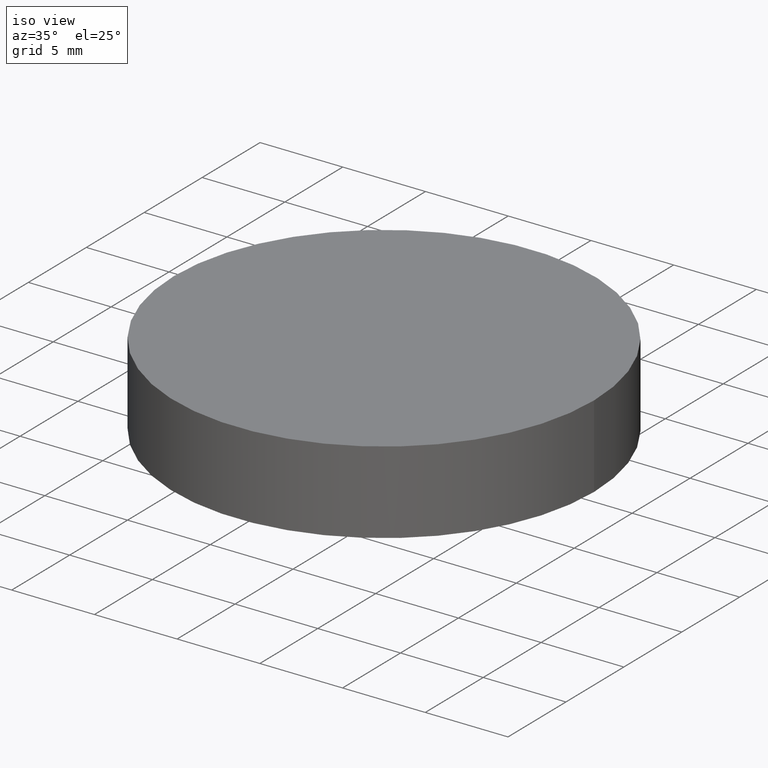
[diagram: clean part render]
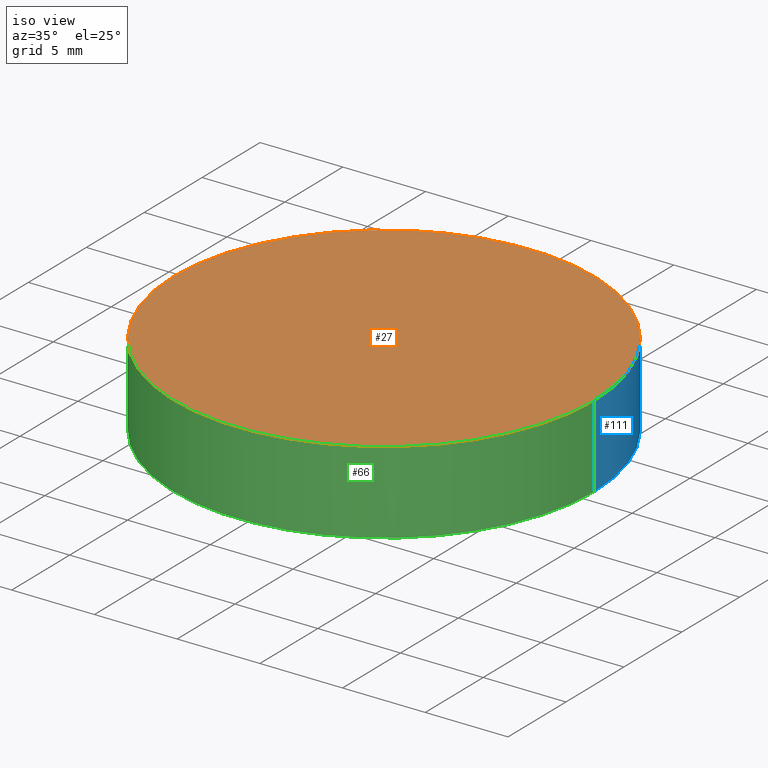
[diagram: same view with three faces highlighted in distinct colors, each labeled with its STEP entity id]
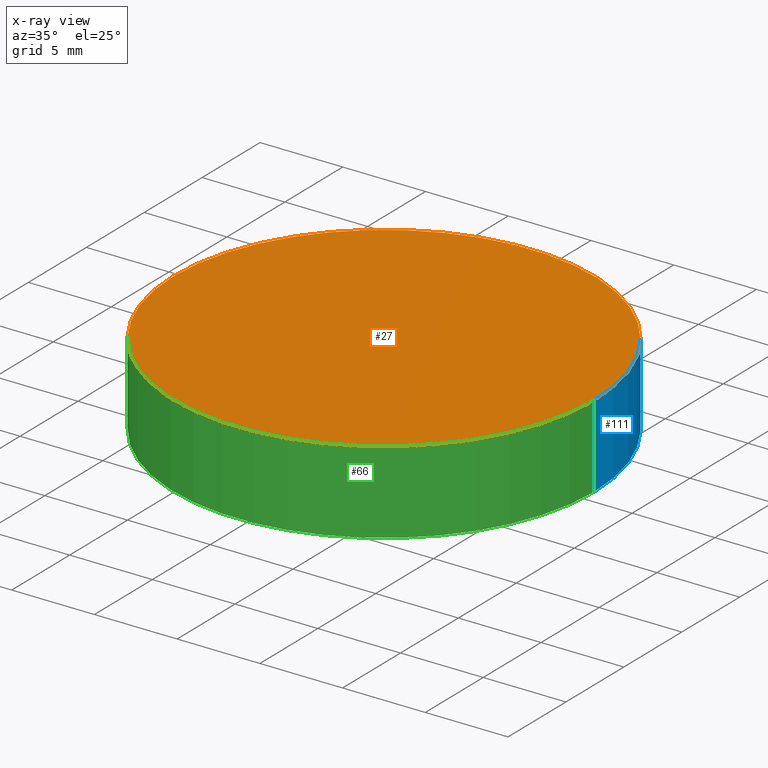
[diagram: x-ray of the same camera — body ghosted, the three highlighted faces saturated]
A machine part, iso view with three faces highlighted in distinct colors.
The next image is the same camera in x-ray (body ghosted, the three faces saturated) — at least one of them is partly hidden behind the body in this view.
Their STEP definitions:

[orange] entity #27 — the highlighted planar face has unit normal (0, 0, 1).
#1 = DIRECTION ( 'NONE',  ( 1.000000000000000000, 0.0000000000000000000, 0.0000000000000000000 ) ) ;
#6 = VERTEX_POINT ( 'NONE', #26 ) ;
#13 = CARTESIAN_POINT ( 'NONE',  ( 0.0000000000000000000, 0.0000000000000000000, 5.000000000000000000 ) ) ;
#17 = DIRECTION ( 'NONE',  ( 0.0000000000000000000, 0.0000000000000000000, 1.000000000000000000 ) ) ;
#21 = ORIENTED_EDGE ( 'NONE', *, *, #128, .T. ) ;
#26 = CARTESIAN_POINT ( 'NONE',  ( -12.69999999999999900, 0.0000000000000000000, 5.000000000000000000 ) ) ;
#27 = ADVANCED_FACE ( 'NONE', ( #105 ), #50, .T. ) ;
#37 = DIRECTION ( 'NONE',  ( 1.000000000000000000, 0.0000000000000000000, -0.0000000000000000000 ) ) ;
#38 = VERTEX_POINT ( 'NONE', #121 ) ;
#41 = CIRCLE ( 'NONE', #54, 12.69999999999999900 ) ;
#46 = ORIENTED_EDGE ( 'NONE', *, *, #62, .T. ) ;
#50 = PLANE ( 'NONE',  #73 ) ;
#54 = AXIS2_PLACEMENT_3D ( 'NONE', #13, #80, #1 ) ;
#59 = DIRECTION ( 'NONE',  ( 0.0000000000000000000, 0.0000000000000000000, 1.000000000000000000 ) ) ;
#60 = CARTESIAN_POINT ( 'NONE',  ( 0.0000000000000000000, 0.0000000000000000000, 5.000000000000000000 ) ) ;
#62 = EDGE_CURVE ( 'NONE', #38, #6, #124, .T. ) ;
#73 = AXIS2_PLACEMENT_3D ( 'NONE', #60, #17, #37 ) ;
#80 = DIRECTION ( 'NONE',  ( 0.0000000000000000000, 0.0000000000000000000, 1.000000000000000000 ) ) ;
#105 = FACE_OUTER_BOUND ( 'NONE', #136, .T. ) ;
#113 = AXIS2_PLACEMENT_3D ( 'NONE', #133, #59, #120 ) ;
#120 = DIRECTION ( 'NONE',  ( 1.000000000000000000, 0.0000000000000000000, 0.0000000000000000000 ) ) ;
#121 = CARTESIAN_POINT ( 'NONE',  ( 12.69999999999999900, 1.555301434917138400E-015, 5.000000000000000000 ) ) ;
#124 = CIRCLE ( 'NONE', #113, 12.69999999999999900 ) ;
#128 = EDGE_CURVE ( 'NONE', #6, #38, #41, .T. ) ;
#133 = CARTESIAN_POINT ( 'NONE',  ( 0.0000000000000000000, 0.0000000000000000000, 5.000000000000000000 ) ) ;
#136 = EDGE_LOOP ( 'NONE', ( #21, #46 ) ) ;

[blue] entity #111 — the highlighted cylindrical surface (partial cylindrical patch) has radius 12.7 mm, axis along (-0, -0, -1).
#2 = AXIS2_PLACEMENT_3D ( 'NONE', #52, #83, #5 ) ;
#3 = DIRECTION ( 'NONE',  ( -0.0000000000000000000, -0.0000000000000000000, -1.000000000000000000 ) ) ;
#5 = DIRECTION ( 'NONE',  ( 1.000000000000000000, 0.0000000000000000000, 0.0000000000000000000 ) ) ;
#6 = VERTEX_POINT ( 'NONE', #26 ) ;
#11 = EDGE_CURVE ( 'NONE', #95, #79, #19, .T. ) ;
#12 = LINE ( 'NONE', #119, #138 ) ;
#15 = CARTESIAN_POINT ( 'NONE',  ( 12.69999999999999900, 1.555301434917138400E-015, 0.0000000000000000000 ) ) ;
#19 = CIRCLE ( 'NONE', #2, 12.69999999999999900 ) ;
#24 = EDGE_LOOP ( 'NONE', ( #94, #63, #85, #114 ) ) ;
#26 = CARTESIAN_POINT ( 'NONE',  ( -12.69999999999999900, 0.0000000000000000000, 5.000000000000000000 ) ) ;
#29 = CARTESIAN_POINT ( 'NONE',  ( -12.69999999999999900, 0.0000000000000000000, 5.000000000000000000 ) ) ;
#30 = CYLINDRICAL_SURFACE ( 'NONE', #61, 12.69999999999999900 ) ;
#38 = VERTEX_POINT ( 'NONE', #121 ) ;
#49 = CARTESIAN_POINT ( 'NONE',  ( -12.69999999999999900, 0.0000000000000000000, 0.0000000000000000000 ) ) ;
#52 = CARTESIAN_POINT ( 'NONE',  ( 0.0000000000000000000, 0.0000000000000000000, 0.0000000000000000000 ) ) ;
#59 = DIRECTION ( 'NONE',  ( 0.0000000000000000000, 0.0000000000000000000, 1.000000000000000000 ) ) ;
#61 = AXIS2_PLACEMENT_3D ( 'NONE', #81, #3, #131 ) ;
#62 = EDGE_CURVE ( 'NONE', #38, #6, #124, .T. ) ;
#63 = ORIENTED_EDGE ( 'NONE', *, *, #109, .T. ) ;
#65 = DIRECTION ( 'NONE',  ( -0.0000000000000000000, -0.0000000000000000000, -1.000000000000000000 ) ) ;
#69 = EDGE_CURVE ( 'NONE', #6, #79, #72, .T. ) ;
#72 = LINE ( 'NONE', #29, #123 ) ;
#79 = VERTEX_POINT ( 'NONE', #49 ) ;
#81 = CARTESIAN_POINT ( 'NONE',  ( 0.0000000000000000000, 0.0000000000000000000, 5.000000000000000000 ) ) ;
#83 = DIRECTION ( 'NONE',  ( 0.0000000000000000000, 0.0000000000000000000, 1.000000000000000000 ) ) ;
#85 = ORIENTED_EDGE ( 'NONE', *, *, #11, .T. ) ;
#86 = FACE_OUTER_BOUND ( 'NONE', #24, .T. ) ;
#92 = DIRECTION ( 'NONE',  ( -0.0000000000000000000, -0.0000000000000000000, -1.000000000000000000 ) ) ;
#94 = ORIENTED_EDGE ( 'NONE', *, *, #62, .F. ) ;
#95 = VERTEX_POINT ( 'NONE', #15 ) ;
#109 = EDGE_CURVE ( 'NONE', #38, #95, #12, .T. ) ;
#111 = ADVANCED_FACE ( 'NONE', ( #86 ), #30, .T. ) ;
#113 = AXIS2_PLACEMENT_3D ( 'NONE', #133, #59, #120 ) ;
#114 = ORIENTED_EDGE ( 'NONE', *, *, #69, .F. ) ;
#119 = CARTESIAN_POINT ( 'NONE',  ( 12.69999999999999900, 1.555301434917138400E-015, 5.000000000000000000 ) ) ;
#120 = DIRECTION ( 'NONE',  ( 1.000000000000000000, 0.0000000000000000000, 0.0000000000000000000 ) ) ;
#121 = CARTESIAN_POINT ( 'NONE',  ( 12.69999999999999900, 1.555301434917138400E-015, 5.000000000000000000 ) ) ;
#123 = VECTOR ( 'NONE', #92, 1000.000000000000000 ) ;
#124 = CIRCLE ( 'NONE', #113, 12.69999999999999900 ) ;
#131 = DIRECTION ( 'NONE',  ( -1.000000000000000000, 0.0000000000000000000, 0.0000000000000000000 ) ) ;
#133 = CARTESIAN_POINT ( 'NONE',  ( 0.0000000000000000000, 0.0000000000000000000, 5.000000000000000000 ) ) ;
#138 = VECTOR ( 'NONE', #65, 1000.000000000000000 ) ;

[green] entity #66 — the highlighted cylindrical surface (partial cylindrical patch) has radius 12.7 mm, axis along (-0, -0, -1).
#1 = DIRECTION ( 'NONE',  ( 1.000000000000000000, 0.0000000000000000000, 0.0000000000000000000 ) ) ;
#6 = VERTEX_POINT ( 'NONE', #26 ) ;
#8 = AXIS2_PLACEMENT_3D ( 'NONE', #67, #132, #58 ) ;
#12 = LINE ( 'NONE', #119, #138 ) ;
#13 = CARTESIAN_POINT ( 'NONE',  ( 0.0000000000000000000, 0.0000000000000000000, 5.000000000000000000 ) ) ;
#15 = CARTESIAN_POINT ( 'NONE',  ( 12.69999999999999900, 1.555301434917138400E-015, 0.0000000000000000000 ) ) ;
#16 = FACE_OUTER_BOUND ( 'NONE', #110, .T. ) ;
#18 = AXIS2_PLACEMENT_3D ( 'NONE', #93, #104, #82 ) ;
#26 = CARTESIAN_POINT ( 'NONE',  ( -12.69999999999999900, 0.0000000000000000000, 5.000000000000000000 ) ) ;
#29 = CARTESIAN_POINT ( 'NONE',  ( -12.69999999999999900, 0.0000000000000000000, 5.000000000000000000 ) ) ;
#38 = VERTEX_POINT ( 'NONE', #121 ) ;
#41 = CIRCLE ( 'NONE', #54, 12.69999999999999900 ) ;
#44 = CIRCLE ( 'NONE', #8, 12.69999999999999900 ) ;
#49 = CARTESIAN_POINT ( 'NONE',  ( -12.69999999999999900, 0.0000000000000000000, 0.0000000000000000000 ) ) ;
#53 = ORIENTED_EDGE ( 'NONE', *, *, #77, .T. ) ;
#54 = AXIS2_PLACEMENT_3D ( 'NONE', #13, #80, #1 ) ;
#58 = DIRECTION ( 'NONE',  ( 1.000000000000000000, 0.0000000000000000000, 0.0000000000000000000 ) ) ;
#65 = DIRECTION ( 'NONE',  ( -0.0000000000000000000, -0.0000000000000000000, -1.000000000000000000 ) ) ;
#66 = ADVANCED_FACE ( 'NONE', ( #16 ), #70, .T. ) ;
#67 = CARTESIAN_POINT ( 'NONE',  ( 0.0000000000000000000, 0.0000000000000000000, 0.0000000000000000000 ) ) ;
#69 = EDGE_CURVE ( 'NONE', #6, #79, #72, .T. ) ;
#70 = CYLINDRICAL_SURFACE ( 'NONE', #18, 12.69999999999999900 ) ;
#72 = LINE ( 'NONE', #29, #123 ) ;
#74 = ORIENTED_EDGE ( 'NONE', *, *, #128, .F. ) ;
#77 = EDGE_CURVE ( 'NONE', #79, #95, #44, .T. ) ;
#79 = VERTEX_POINT ( 'NONE', #49 ) ;
#80 = DIRECTION ( 'NONE',  ( 0.0000000000000000000, 0.0000000000000000000, 1.000000000000000000 ) ) ;
#82 = DIRECTION ( 'NONE',  ( -1.000000000000000000, 0.0000000000000000000, 0.0000000000000000000 ) ) ;
#92 = DIRECTION ( 'NONE',  ( -0.0000000000000000000, -0.0000000000000000000, -1.000000000000000000 ) ) ;
#93 = CARTESIAN_POINT ( 'NONE',  ( 0.0000000000000000000, 0.0000000000000000000, 5.000000000000000000 ) ) ;
#95 = VERTEX_POINT ( 'NONE', #15 ) ;
#104 = DIRECTION ( 'NONE',  ( -0.0000000000000000000, -0.0000000000000000000, -1.000000000000000000 ) ) ;
#109 = EDGE_CURVE ( 'NONE', #38, #95, #12, .T. ) ;
#110 = EDGE_LOOP ( 'NONE', ( #129, #74, #117, #53 ) ) ;
#117 = ORIENTED_EDGE ( 'NONE', *, *, #69, .T. ) ;
#119 = CARTESIAN_POINT ( 'NONE',  ( 12.69999999999999900, 1.555301434917138400E-015, 5.000000000000000000 ) ) ;
#121 = CARTESIAN_POINT ( 'NONE',  ( 12.69999999999999900, 1.555301434917138400E-015, 5.000000000000000000 ) ) ;
#123 = VECTOR ( 'NONE', #92, 1000.000000000000000 ) ;
#128 = EDGE_CURVE ( 'NONE', #6, #38, #41, .T. ) ;
#129 = ORIENTED_EDGE ( 'NONE', *, *, #109, .F. ) ;
#132 = DIRECTION ( 'NONE',  ( 0.0000000000000000000, 0.0000000000000000000, 1.000000000000000000 ) ) ;
#138 = VECTOR ( 'NONE', #65, 1000.000000000000000 ) ;